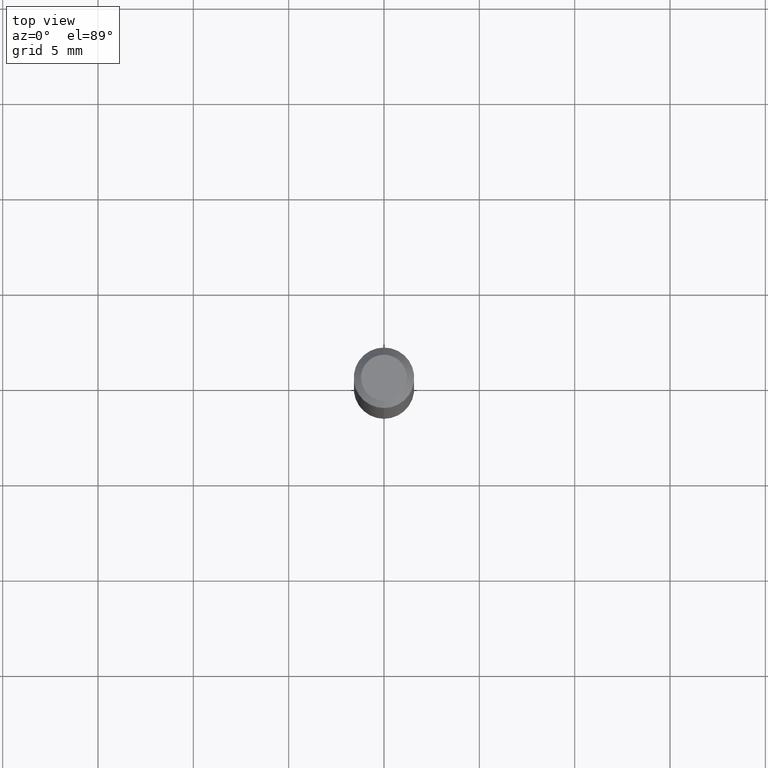
[diagram: clean part render]
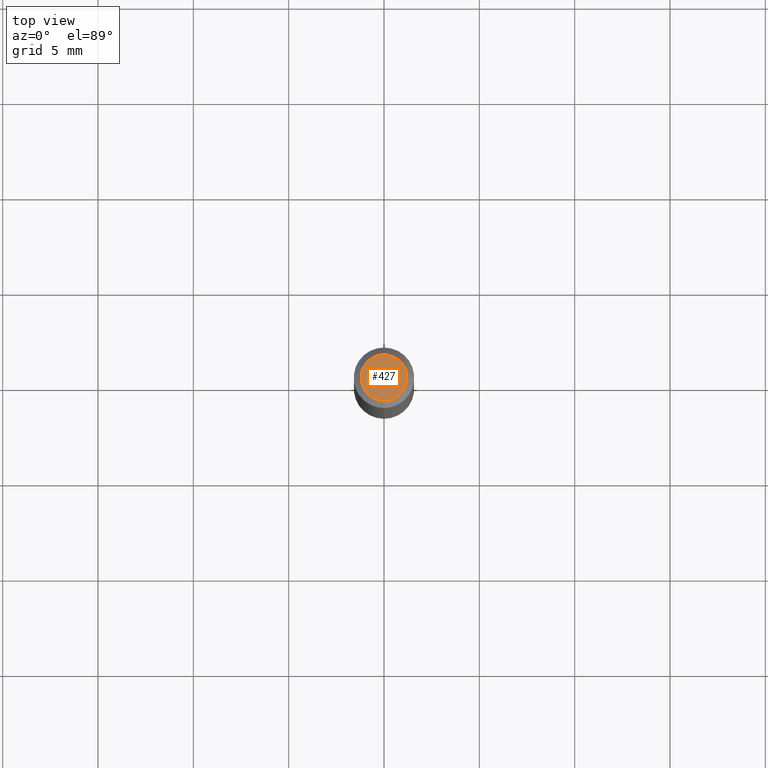
[diagram: same view with one face highlighted and labeled with its STEP entity id]
A machine part, top view. The second image highlights one B-rep face of the part: STEP entity #427.
In plain terms, the highlighted planar face has unit normal (0, -0, -1).
Its self-contained STEP definition (entity closure, byte-faithful):
#63 = DIRECTION ( 'NONE',  ( -2.445394468719780989E-29, 3.491587794324560733E-15, 1.000000000000000000 ) ) ;
#65 = CARTESIAN_POINT ( 'NONE',  ( 8.024363653944371888E-45, -1.145736221690308008E-30, -3.281418910767924715E-16 ) ) ;
#72 = DIRECTION ( 'NONE',  ( 6.982962677686265922E-15, 1.000000000000000000, -3.491587794324560733E-15 ) ) ;
#75 = FACE_OUTER_BOUND ( 'NONE', #223, .T. ) ;
#110 = EDGE_CURVE ( 'NONE', #168, #230, #216, .T. ) ;
#138 = ORIENTED_EDGE ( 'NONE', *, *, #110, .T. ) ;
#164 = AXIS2_PLACEMENT_3D ( 'NONE', #65, #63, #467 ) ;
#168 = VERTEX_POINT ( 'NONE', #213 ) ;
#177 = CARTESIAN_POINT ( 'NONE',  ( 3.840629472727447874E-16, 0.04749999999999999362, -4.939923113072091241E-16 ) ) ;
#195 = PLANE ( 'NONE',  #437 ) ;
#213 = CARTESIAN_POINT ( 'NONE',  ( -3.773273898774340269E-16, -0.04749999999999999362, -1.622914708463758436E-16 ) ) ;
#216 = CIRCLE ( 'NONE', #365, 0.04749999999999999362 ) ;
#223 = EDGE_LOOP ( 'NONE', ( #423, #138 ) ) ;
#230 = VERTEX_POINT ( 'NONE', #177 ) ;
#238 = DIRECTION ( 'NONE',  ( -6.982962677686266711E-15, -1.000000000000000000, 3.491587794324561127E-15 ) ) ;
#268 = CARTESIAN_POINT ( 'NONE',  ( 3.316907271900976096E-16, 0.04749999999999999362, -3.299213657688128390E-16 ) ) ;
#269 = CARTESIAN_POINT ( 'NONE',  ( 8.024363653944371888E-45, -1.145736221690308008E-30, -3.281418910767924715E-16 ) ) ;
#365 = AXIS2_PLACEMENT_3D ( 'NONE', #269, #431, #238 ) ;
#403 = EDGE_CURVE ( 'NONE', #230, #168, #486, .T. ) ;
#423 = ORIENTED_EDGE ( 'NONE', *, *, #403, .T. ) ;
#427 = ADVANCED_FACE ( 'NONE', ( #75 ), #195, .F. ) ;
#430 = DIRECTION ( 'NONE',  ( 2.445394468719780429E-29, -3.491587794324560733E-15, -1.000000000000000000 ) ) ;
#431 = DIRECTION ( 'NONE',  ( -2.445394468719780989E-29, 3.491587794324560733E-15, 1.000000000000000000 ) ) ;
#437 = AXIS2_PLACEMENT_3D ( 'NONE', #268, #430, #72 ) ;
#467 = DIRECTION ( 'NONE',  ( -6.982962677686266711E-15, -1.000000000000000000, 3.491587794324561127E-15 ) ) ;
#486 = CIRCLE ( 'NONE', #164, 0.04749999999999999362 ) ;